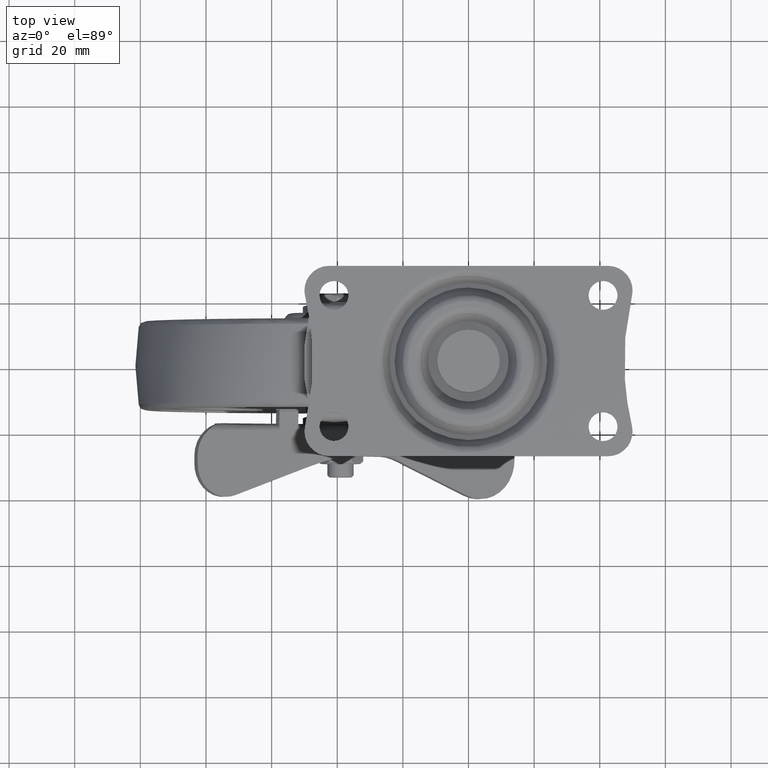
[diagram: clean part render]
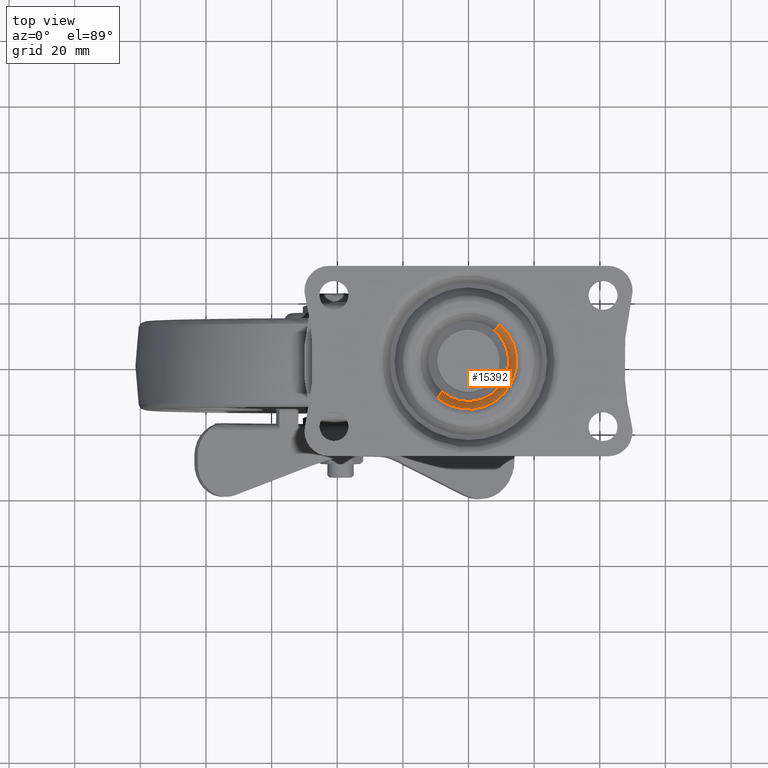
[diagram: same view with one face highlighted and labeled with its STEP entity id]
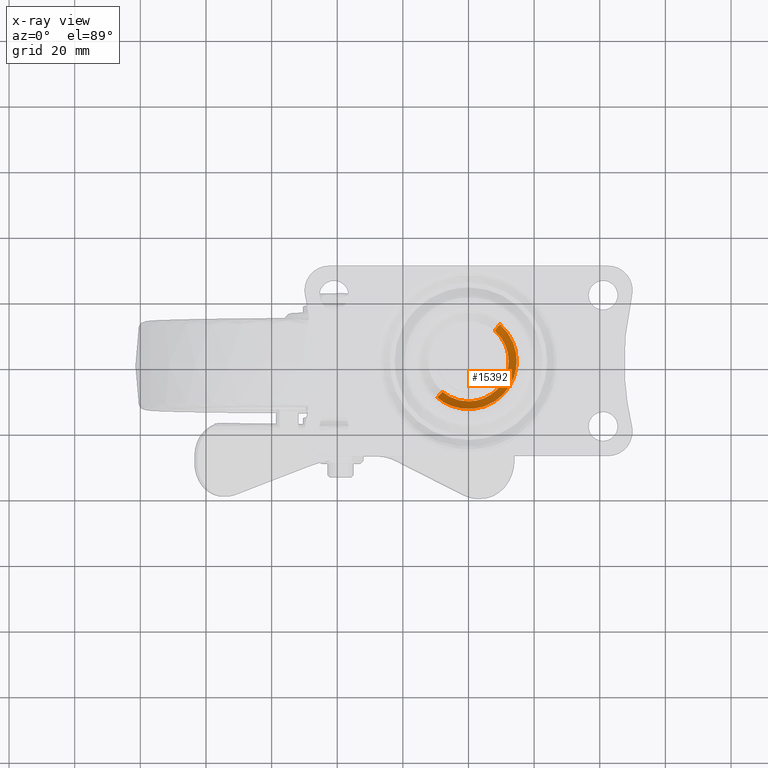
[diagram: x-ray of the same camera — body ghosted, the highlighted face saturated]
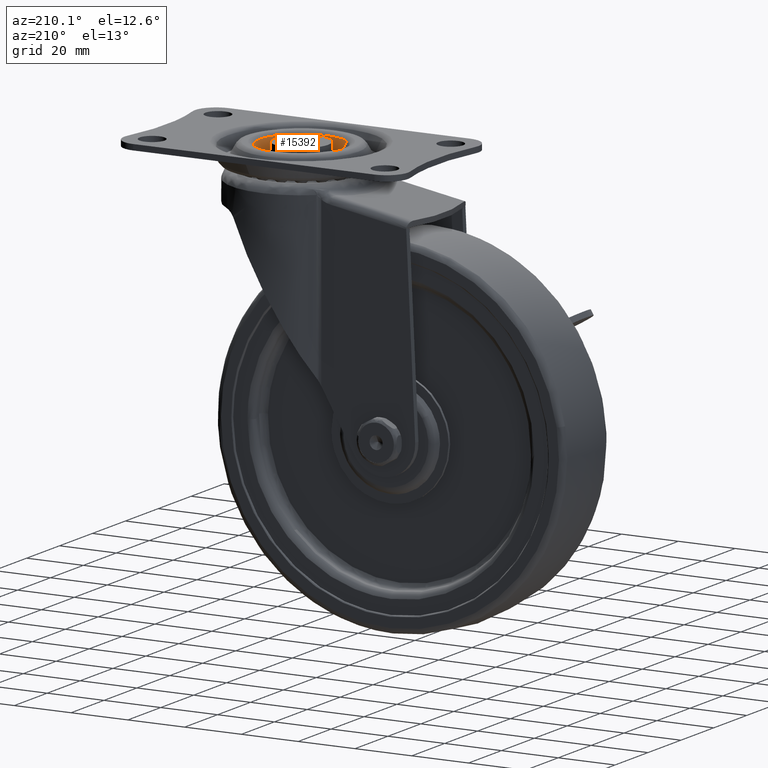
[diagram: same view with one face highlighted and labeled with its STEP entity id]
A machine part, top view. The second image highlights one B-rep face of the part: STEP entity #15392.
The next image is the same camera in x-ray: the body ghosted, the highlighted face saturated — about 0% of this face is hidden behind the body in this view.
A second angle (auxiliary view) of the same face is appended — the face is thin or edge-on in the first view.
In plain terms, the highlighted face is a freeform B-spline surface patch.
Its self-contained STEP definition (entity closure, byte-faithful):
#14469=CARTESIAN_POINT('',(-7.955739173172601,-9.314973759013174,-3.200000690031438));
#14470=VERTEX_POINT('',#14469);
#14482=CARTESIAN_POINT('',(-0.000002899059861,-12.249999999999670,-3.200001000000045));
#14483=VERTEX_POINT('',#14482);
#14484=CARTESIAN_POINT('',(-0.000002899059861,-12.249999999999670,-3.200001000000045));
#14485=CARTESIAN_POINT('',(-1.398270301773179,-12.251058534336590,-3.200000945521274));
#14486=CARTESIAN_POINT('',(-3.291725648979224,-11.922144769773730,-3.200000871749062));
#14487=CARTESIAN_POINT('',(-5.951556511359549,-10.787468549978980,-3.200000768117766));
#14488=CARTESIAN_POINT('',(-7.201438567429310,-9.959584808611064,-3.200000719420186));
#14489=CARTESIAN_POINT('',(-7.955739173172601,-9.314973759013174,-3.200000690031438));
#14490=B_SPLINE_CURVE_WITH_KNOTS('',3,(#14484,#14485,#14486,#14487,#14488,#14489),.UNSPECIFIED.,.F.,.U.,(4,1,1,4),(0.000000057648727,4.194272673126625,5.682501648680733,8.659056177660609),.UNSPECIFIED.);
#14491=EDGE_CURVE('',#14483,#14470,#14490,.T.);
#14493=CARTESIAN_POINT('',(12.250000000000000,-1.421085E-014,-3.200001000000045));
#14494=VERTEX_POINT('',#14493);
#14495=CARTESIAN_POINT('',(12.250000000000000,-1.421085E-014,-3.200001000000045));
#14496=CARTESIAN_POINT('',(12.250533273859389,-1.252813984289545,-3.200001000000046));
#14497=CARTESIAN_POINT('',(11.947601008640820,-3.206737863747454,-3.200001000000042));
#14498=CARTESIAN_POINT('',(10.984869857871070,-5.530017526005969,-3.200001000000049));
#14499=CARTESIAN_POINT('',(9.941568116720978,-7.246806063734061,-3.200001000000045));
#14500=CARTESIAN_POINT('',(8.538341972711782,-8.893991195606601,-3.200001000000043));
#14501=CARTESIAN_POINT('',(6.561970205508208,-10.456078363100470,-3.200001000000059));
#14502=CARTESIAN_POINT('',(3.707531307379961,-11.849364028471969,-3.200001000000011));
#14503=CARTESIAN_POINT('',(1.403234423663645,-12.251057735952470,-3.200001000000073));
#14504=CARTESIAN_POINT('',(-0.000002899059861,-12.249999999999670,-3.200001000000045));
#14505=B_SPLINE_CURVE_WITH_KNOTS('',3,(#14495,#14496,#14497,#14498,#14499,#14500,#14501,#14502,#14503,#14504),.UNSPECIFIED.,.F.,.U.,(4,1,1,1,1,1,1,4),(0.000000288633721,3.758255643008818,5.862936187725630,7.516605859691635,9.771432666989316,12.327131498580631,15.033120320337551,19.242377374211749),.UNSPECIFIED.);
#14506=EDGE_CURVE('',#14494,#14483,#14505,.T.);
#14508=CARTESIAN_POINT('',(7.955739173172560,9.314973759013100,-3.200000690031459));
#14509=VERTEX_POINT('',#14508);
#14510=CARTESIAN_POINT('',(7.955739173172560,9.314973759013100,-3.200000690031459));
#14511=CARTESIAN_POINT('',(8.500641164444303,8.849626364587605,-3.200000705516529));
#14512=CARTESIAN_POINT('',(9.702454243772040,7.625606469217778,-3.200000746247495));
#14513=CARTESIAN_POINT('',(10.925203412336570,5.705241598459679,-3.200000810150259));
#14514=CARTESIAN_POINT('',(11.964965901957680,3.086377471323196,-3.200000897296597));
#14515=CARTESIAN_POINT('',(12.250657331976569,1.267911062209704,-3.200000957808546));
#14516=CARTESIAN_POINT('',(12.250000000000000,-1.421085E-014,-3.200001000000045));
#14517=B_SPLINE_CURVE_WITH_KNOTS('',3,(#14510,#14511,#14512,#14513,#14514,#14515,#14516),.UNSPECIFIED.,.F.,.U.,(4,1,1,1,4),(0.000000092472600,2.149727509113189,5.126340094657006,6.779914388606782,10.583320987719370),.UNSPECIFIED.);
#14518=EDGE_CURVE('',#14509,#14494,#14517,.T.);
#15317=CARTESIAN_POINT('',(-7.916367887028470,-9.268875905714541,-3.305001025164985));
#15318=CARTESIAN_POINT('',(1.352508018686057,-17.185243792743016,-3.305001025164984));
#15319=CARTESIAN_POINT('',(9.268875905714527,-7.916367887028485,-3.305001025164985));
#15320=CARTESIAN_POINT('',(17.185243792743002,1.352508018686042,-3.305001025164984));
#15321=CARTESIAN_POINT('',(7.916367887028470,9.268875905714513,-3.305001025164985));
#15322=CARTESIAN_POINT('',(-9.570921765337305,-11.206109596242261,1.107625032391598));
#15323=CARTESIAN_POINT('',(1.635187830904941,-20.777031361579567,1.107625032391598));
#15324=CARTESIAN_POINT('',(11.206109596242250,-9.570921765337319,1.107625032391598));
#15325=CARTESIAN_POINT('',(20.777031361579553,1.635187830904925,1.107625032391598));
#15326=CARTESIAN_POINT('',(9.570921765337305,11.206109596242230,1.107625032391598));
#15334=(BOUNDED_SURFACE()B_SPLINE_SURFACE(2,1,((#15317,#15322),(#15318,#15323),(#15319,#15324),(#15320,#15325),(#15321,#15326)),.UNSPECIFIED.,.F.,.F.,.U.)B_SPLINE_SURFACE_WITH_KNOTS((3,2,3),(2,2),(0.0,24.417076068255600,48.834152136511193),(0.0,5.095261684326900),.UNSPECIFIED.)GEOMETRIC_REPRESENTATION_ITEM()RATIONAL_B_SPLINE_SURFACE(((1.0,1.0),(0.707106781186548,0.707106781186548),(1.0,1.0),(0.707106781186548,0.707106781186548),(1.0,1.0)))REPRESENTATION_ITEM('')SURFACE());
#15335=ORIENTED_EDGE('',*,*,#14491,.T.);
#15336=CARTESIAN_POINT('',(-9.530566790405675,-11.158859991352941,1.000000001551843));
#15337=VERTEX_POINT('',#15336);
#15338=CARTESIAN_POINT('',(-7.955739173172601,-9.314973759013174,-3.200000690031438));
#15339=CARTESIAN_POINT('',(-9.530566790405675,-11.158859991352941,1.000000001551843));
#15340=QUASI_UNIFORM_CURVE('',1,(#15338,#15339),.UNSPECIFIED.,.F.,.U.);
#15341=EDGE_CURVE('',#14470,#15337,#15340,.T.);
#15342=ORIENTED_EDGE('',*,*,#15341,.T.);
#15343=CARTESIAN_POINT('',(12.769834965275400,-7.230710526367439,1.000000006597536));
#15344=VERTEX_POINT('',#15343);
#15345=CARTESIAN_POINT('',(12.769834965275400,-7.230710526367439,1.000000006597536));
#15346=CARTESIAN_POINT('',(12.272175607498530,-8.109943269881089,1.000000006519124));
#15347=CARTESIAN_POINT('',(11.290449593431470,-9.488984560243161,1.000000006349097));
#15348=CARTESIAN_POINT('',(9.418993735877546,-11.341119431836550,1.000000005991414));
#15349=CARTESIAN_POINT('',(7.153036264586554,-12.941909992823270,1.000000005530629));
#15350=CARTESIAN_POINT('',(4.406519609763056,-14.108091531086570,1.000000004938662));
#15351=CARTESIAN_POINT('',(1.620127054566957,-14.658277653840630,1.000000004310790));
#15352=CARTESIAN_POINT('',(-0.744625697844186,-14.712406116952820,1.000000003760080));
#15353=CARTESIAN_POINT('',(-2.954186638746917,-14.426777529602941,1.000000003230988));
#15354=CARTESIAN_POINT('',(-4.905444872314019,-13.880129296872459,1.000000002751059));
#15355=CARTESIAN_POINT('',(-7.194573058361352,-12.883024005591430,1.000000002172617));
#15356=CARTESIAN_POINT('',(-8.660049616322075,-11.902690388168780,1.000000001787565));
#15357=CARTESIAN_POINT('',(-9.530566790405675,-11.158859991352941,1.000000001551843));
#15358=B_SPLINE_CURVE_WITH_KNOTS('',3,(#15345,#15346,#15347,#15348,#15349,#15350,#15351,#15352,#15353,#15354,#15355,#15356,#15357),.UNSPECIFIED.,.F.,.U.,(4,1,1,1,1,1,1,1,1,1,4),(0.000000257842366,3.030891219162879,5.051497326659312,7.880369412168914,11.315435314985599,13.942092152295080,16.366858064176171,18.387466312826170,20.610141898583318,22.428676304746450,25.863689487864018),.UNSPECIFIED.);
#15359=EDGE_CURVE('',#15344,#15337,#15358,.T.);
#15360=ORIENTED_EDGE('',*,*,#15359,.F.);
#15361=CARTESIAN_POINT('',(14.674871707946719,-1.421085E-014,1.0));
#15362=VERTEX_POINT('',#15361);
#15363=CARTESIAN_POINT('',(14.674871707946719,-1.421085E-014,1.0));
#15364=CARTESIAN_POINT('',(14.675138641561620,-1.181398932958435,1.000000001007919));
#15365=CARTESIAN_POINT('',(14.368853995294160,-3.701528905742873,1.000000003226966));
#15366=CARTESIAN_POINT('',(13.429961511001061,-6.065815956689881,1.000000005455247));
#15367=CARTESIAN_POINT('',(12.769834965275400,-7.230710526367439,1.000000006597536));
#15368=B_SPLINE_CURVE_WITH_KNOTS('',3,(#15363,#15364,#15365,#15366,#15367),.UNSPECIFIED.,.F.,.U.,(4,1,4),(0.000000019902971,3.544172824972824,7.560886600108801),.UNSPECIFIED.);
#15369=EDGE_CURVE('',#15362,#15344,#15368,.T.);
#15370=ORIENTED_EDGE('',*,*,#15369,.F.);
#15371=CARTESIAN_POINT('',(9.530566790405675,11.158859991352919,1.000000001551844));
#15372=VERTEX_POINT('',#15371);
#15373=CARTESIAN_POINT('',(9.530566790405675,11.158859991352919,1.000000001551844));
#15374=CARTESIAN_POINT('',(10.434617093767629,10.387160264443271,1.000000001321275));
#15375=CARTESIAN_POINT('',(11.648464112664881,9.063464353991552,1.000000001001504));
#15376=CARTESIAN_POINT('',(13.089681501874921,6.765720026275148,1.000000000596103));
#15377=CARTESIAN_POINT('',(14.292119556246490,3.961535882654311,1.000000000226434));
#15378=CARTESIAN_POINT('',(14.675620560936300,1.518838273191974,1.000000000053654));
#15379=CARTESIAN_POINT('',(14.674871707946719,-1.421085E-014,1.0));
#15380=B_SPLINE_CURVE_WITH_KNOTS('',3,(#15373,#15374,#15375,#15376,#15377,#15378,#15379),.UNSPECIFIED.,.F.,.U.,(4,1,1,1,4),(0.000000081348842,3.565766906413268,5.348659327967904,8.122015487462434,12.678275270714060),.UNSPECIFIED.);
#15381=EDGE_CURVE('',#15372,#15362,#15380,.T.);
#15382=ORIENTED_EDGE('',*,*,#15381,.F.);
#15383=CARTESIAN_POINT('',(7.955739173172560,9.314973759013100,-3.200000690031459));
#15384=CARTESIAN_POINT('',(9.530566790405675,11.158859991352919,1.000000001551844));
#15385=QUASI_UNIFORM_CURVE('',1,(#15383,#15384),.UNSPECIFIED.,.F.,.U.);
#15386=EDGE_CURVE('',#14509,#15372,#15385,.T.);
#15387=ORIENTED_EDGE('',*,*,#15386,.F.);
#15388=ORIENTED_EDGE('',*,*,#14518,.T.);
#15389=ORIENTED_EDGE('',*,*,#14506,.T.);
#15390=EDGE_LOOP('',(#15335,#15342,#15360,#15370,#15382,#15387,#15388,#15389));
#15391=FACE_OUTER_BOUND('',#15390,.T.);
#15392=ADVANCED_FACE('',(#15391),#15334,.F.);